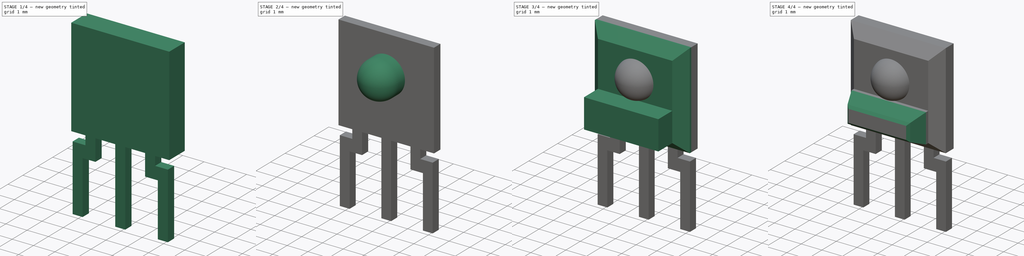
[diagram: build sequence overview — one tinted view per stage of 4, left to right]
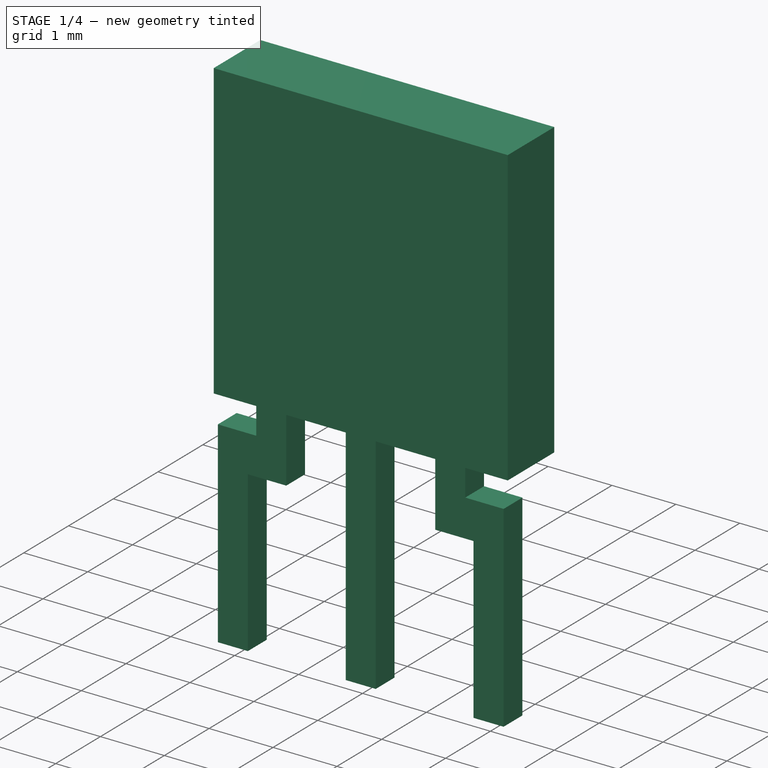
[diagram: stage 1 of 4 — iso view after this stage's code; geometry added in this stage tinted green]
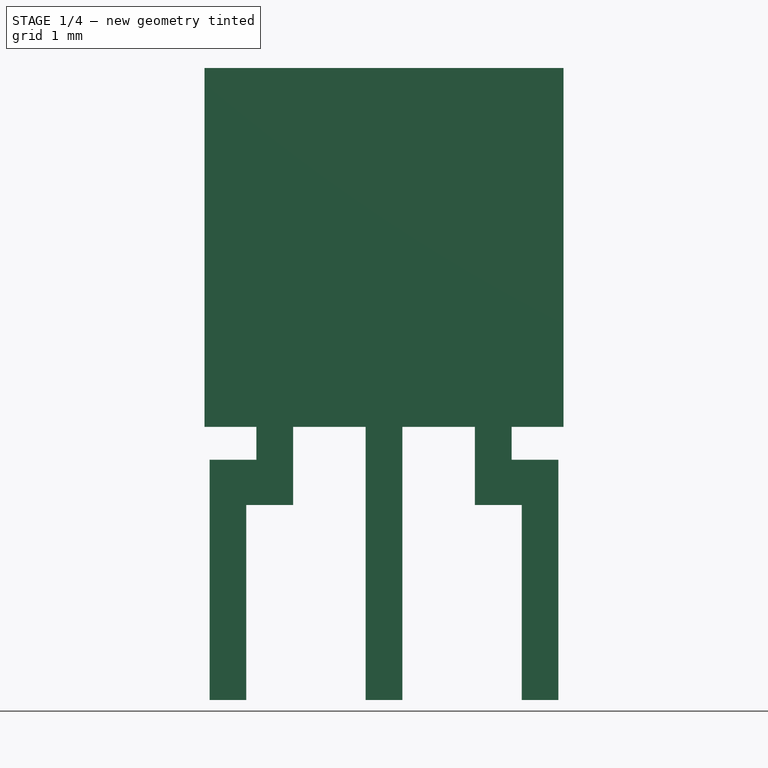
[diagram: stage 1 of 4 — front view after this stage's code; geometry added in this stage tinted green]
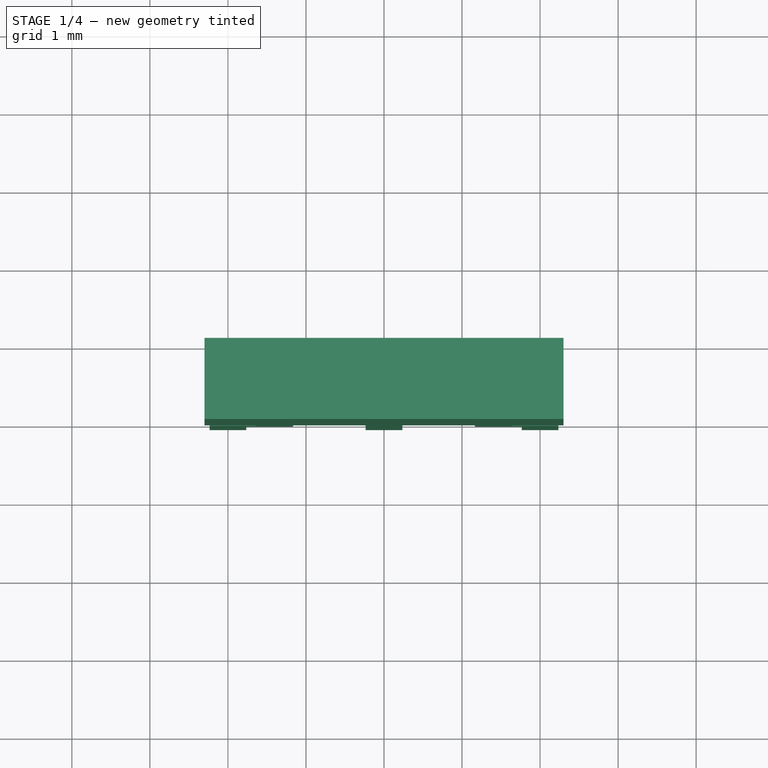
[diagram: stage 1 of 4 — top view after this stage's code; geometry added in this stage tinted green]
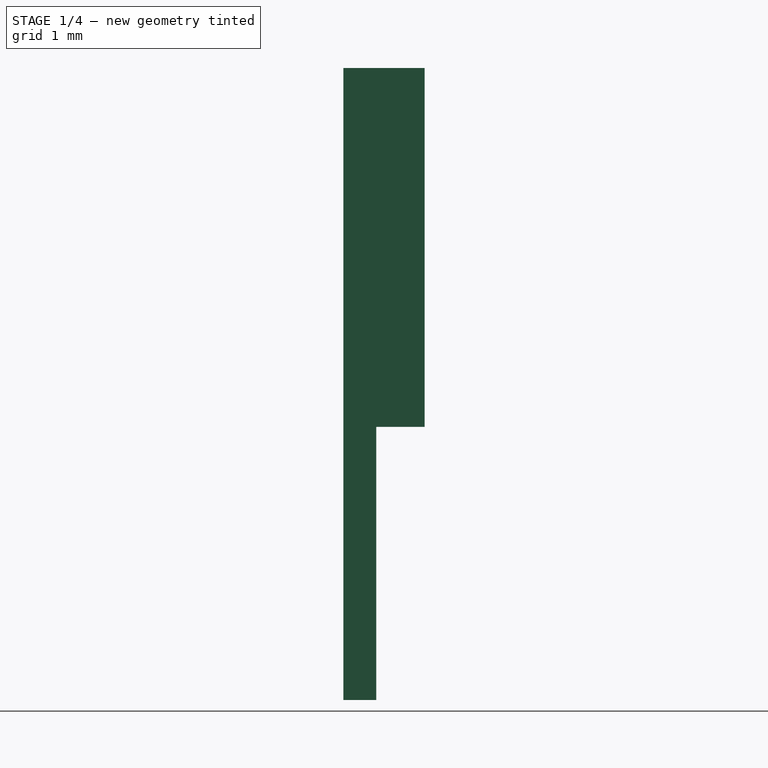
[diagram: stage 1 of 4 — right view after this stage's code; geometry added in this stage tinted green]
FCSTD DOCUMENT  (FreeCAD 0.16RUnknown)
Label: TSL251R
License: All rights reserved
LicenseURL: http://en.wikipedia.org/wiki/All_rights_reserved
objects: Sketcher::SketchObject×6, PartDesign::Pad×5, PartDesign::Chamfer×4, PartDesign::Revolution×1
note: 22 computed .brp shape members not serialized (recipe doc carries the construction recipe); baked Part::Feature solids carry a one-line shape summary decoded from their .brp

FEATURE [Sketcher::SketchObject] Sketch
  Placement = pos=(0,0,0) rot=(-1,0,0;4.71239rad)
  sketch-geometry (4):
    g0: LineSegment StartX=-2.3 StartY=4.6 StartZ=0 EndX=2.3 EndY=4.6 EndZ=0
    g1: LineSegment StartX=2.3 StartY=4.6 StartZ=0 EndX=2.3 EndY=0 EndZ=0
    g2: LineSegment StartX=2.3 StartY=0 StartZ=0 EndX=-2.3 EndY=0 EndZ=0
    g3: LineSegment StartX=-2.3 StartY=0 StartZ=0 EndX=-2.3 EndY=4.6 EndZ=0
  constraints (12):
    c: Coincident(g0,g1)
    c: Coincident(g1,g2)
    c: Coincident(g2,g3)
    c: Coincident(g3,g0)
    c: Horizontal(g0)
    c: Horizontal(g2)
    c: Vertical(g1)
    c: Vertical(g3)
    c: PointOnObject(g1,g-1)
    c: Symmetric(g0,g0,g-2)
    c: DistanceX(g0,g0) = 4.6
    c: DistanceY(g1,g1) = 4.6
FEATURE [PartDesign::Pad] Pad
  Length = 1.04
  Length2 = 100
  Placement = pos=(0,0,0) rot=(-1,0,0;4.71239rad)
  Sketch = -> Sketch
  Type = 0
FEATURE [Sketcher::SketchObject] Sketch001
  Placement = pos=(0,-1.04,0) rot=(1,0,0;1.5708rad)
  Support = -> Pad [Face6]
  sketch-geometry (20):
    g0: LineSegment StartX=-0.235 StartY=0 StartZ=0 EndX=0.235 EndY=0 EndZ=0
    g1: LineSegment StartX=0.235 StartY=0 StartZ=0 EndX=0.235 EndY=-3.5 EndZ=0
    g2: LineSegment StartX=0.235 StartY=-3.5 StartZ=0 EndX=-0.235 EndY=-3.5 EndZ=0
    g3: LineSegment StartX=-0.235 StartY=-3.5 StartZ=0 EndX=-0.235 EndY=0 EndZ=0
    g4: LineSegment StartX=1.635 StartY=0 StartZ=0 EndX=1.635 EndY=-0.42 EndZ=0
    g5: LineSegment StartX=1.635 StartY=-0.42 StartZ=0 EndX=2.235 EndY=-0.42 EndZ=0
    g6: LineSegment StartX=2.235 StartY=-0.42 StartZ=0 EndX=2.235 EndY=-3.5 EndZ=0
    g7: LineSegment StartX=2.235 StartY=-3.5 StartZ=0 EndX=1.765 EndY=-3.5 EndZ=0
    g8: LineSegment StartX=1.765 StartY=-3.5 StartZ=0 EndX=1.765 EndY=-1 EndZ=0
    g9: LineSegment StartX=1.765 StartY=-1 StartZ=0 EndX=1.165 EndY=-1 EndZ=0
    g10: LineSegment StartX=1.165 StartY=-1 StartZ=0 EndX=1.165 EndY=0 EndZ=0
    g11: LineSegment StartX=1.165 StartY=0 StartZ=0 EndX=1.635 EndY=0 EndZ=0
    g12: LineSegment StartX=-1.635 StartY=0 StartZ=0 EndX=-1.635 EndY=-0.42 EndZ=0
    g13: LineSegment StartX=-1.635 StartY=-0.42 StartZ=0 EndX=-2.235 EndY=-0.42 EndZ=0
    g14: LineSegment StartX=-2.235 StartY=-0.42 StartZ=0 EndX=-2.235 EndY=-3.5 EndZ=0
    g15: LineSegment StartX=-2.235 StartY=-3.5 StartZ=0 EndX=-1.765 EndY=-3.5 EndZ=0
    g16: LineSegment StartX=-1.765 StartY=-3.5 StartZ=0 EndX=-1.765 EndY=-1 EndZ=0
    g17: LineSegment StartX=-1.765 StartY=-1 StartZ=0 EndX=-1.165 EndY=-1 EndZ=0
    g18: LineSegment StartX=-1.165 StartY=-1 StartZ=0 EndX=-1.165 EndY=0 EndZ=0
    g19: LineSegment StartX=-1.165 StartY=0 StartZ=0 EndX=-1.635 EndY=0 EndZ=0
  constraints (62):
    c: Coincident(g0,g1)
    c: Coincident(g1,g2)
    c: Coincident(g2,g3)
    c: Coincident(g3,g0)
    c: Horizontal(g0)
    c: Horizontal(g2)
    c: Vertical(g1)
    c: Vertical(g3)
    c: PointOnObject(g0,g-1)
    c: Symmetric(g2,g1,g-2)
    c: DistanceX(g2,g2) = 0.47
    c: DistanceY(g1,g1) = 3.5
    c: PointOnObject(g4,g-1)
    c: Vertical(g4)
    c: Coincident(g4,g5)
    c: Horizontal(g5)
    c: Coincident(g5,g6)
    c: Vertical(g6)
    c: Coincident(g6,g7)
    c: Horizontal(g7)
    c: Coincident(g7,g8)
    c: Vertical(g8)
    c: Coincident(g8,g9)
    c: Horizontal(g9)
    c: Coincident(g9,g10)
    c: Vertical(g10)
    c: Coincident(g10,g11)
    c: Coincident(g11,g4)
    c: Horizontal(g11)
    c: PointOnObject(g12,g-1)
    c: Vertical(g12)
    c: Coincident(g12,g13)
    c: Horizontal(g13)
    c: Coincident(g13,g14)
    c: Vertical(g14)
    c: Coincident(g14,g15)
    c: Horizontal(g15)
    c: Coincident(g15,g16)
    c: Vertical(g16)
    c: Coincident(g16,g17)
    c: Horizontal(g17)
    c: Coincident(g17,g18)
    c: PointOnObject(g18,g-1)
    c: Vertical(g18)
    c: Coincident(g18,g19)
    c: Coincident(g19,g12)
    c: Equal(g15,g2)
    c: Equal(g2,g7)
    c: Equal(g19,g0)
    c: Equal(g0,g11)
    c: DistanceY(g4,g4) = 0.42
    c: Equal(g4,g12)
    c: DistanceY(g10,g10) = 1
    c: Equal(g10,g18)
    c: DistanceX(g15,g2) = 1.53
    c: DistanceX(g1,g7) = 1.53
    c: Equal(g19,g15)
    c: Equal(g11,g7)
    c: DistanceY(g6,g4) = 3.5
    c: DistanceY(g14,g12) = 3.5
    c: Equal(g5,g13)
    c: DistanceX(g5,g5) = 0.6
FEATURE [PartDesign::Pad] Pad001
  Length = 0.42
  Length2 = 100
  Placement = pos=(0,0,0) rot=(-1,0,0;4.71239rad)
  Reversed = true
  Sketch = -> Sketch001
  Type = 0
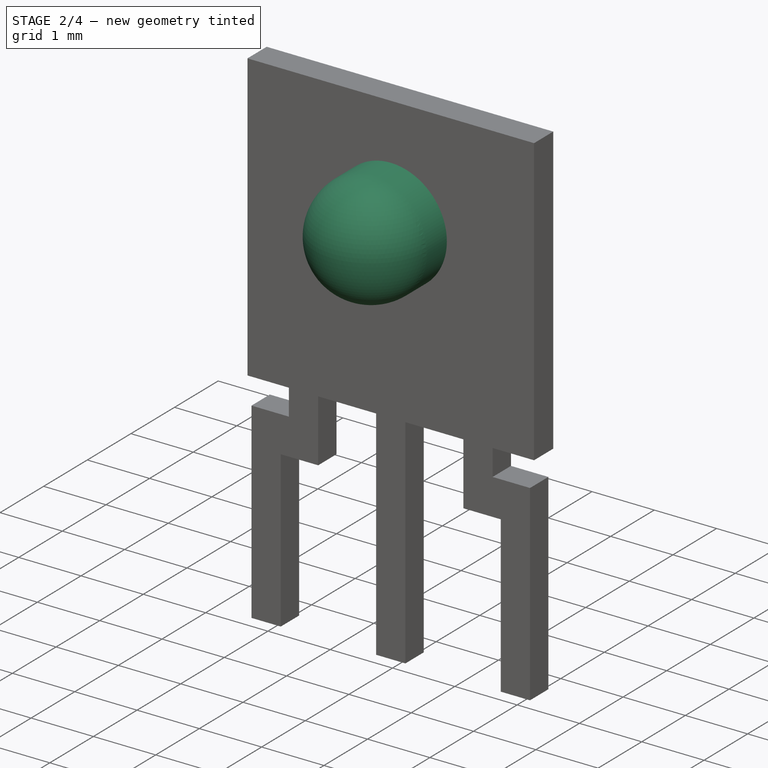
[diagram: stage 2 of 4 — iso view after this stage's code; geometry added in this stage tinted green]
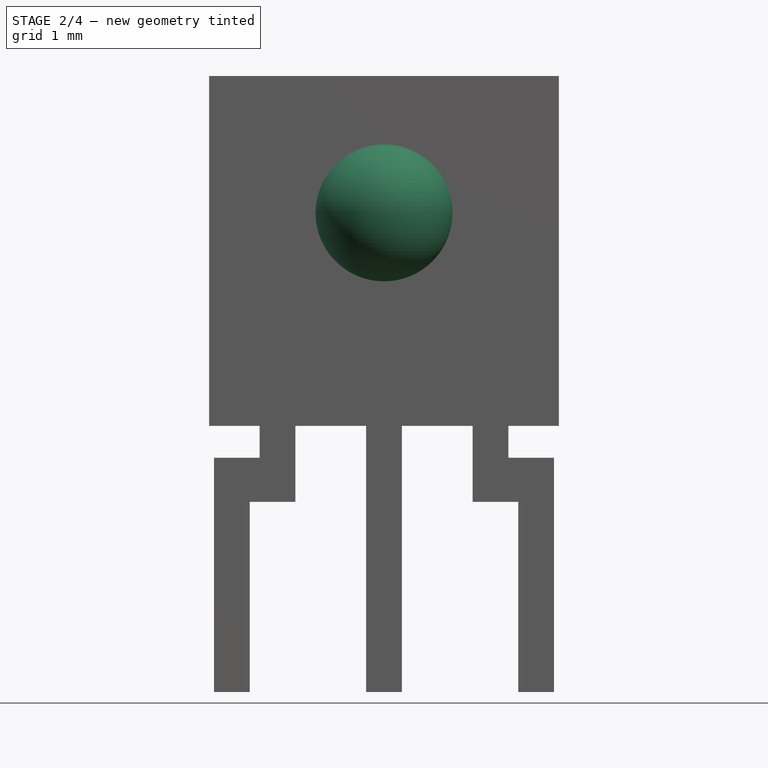
[diagram: stage 2 of 4 — front view after this stage's code; geometry added in this stage tinted green]
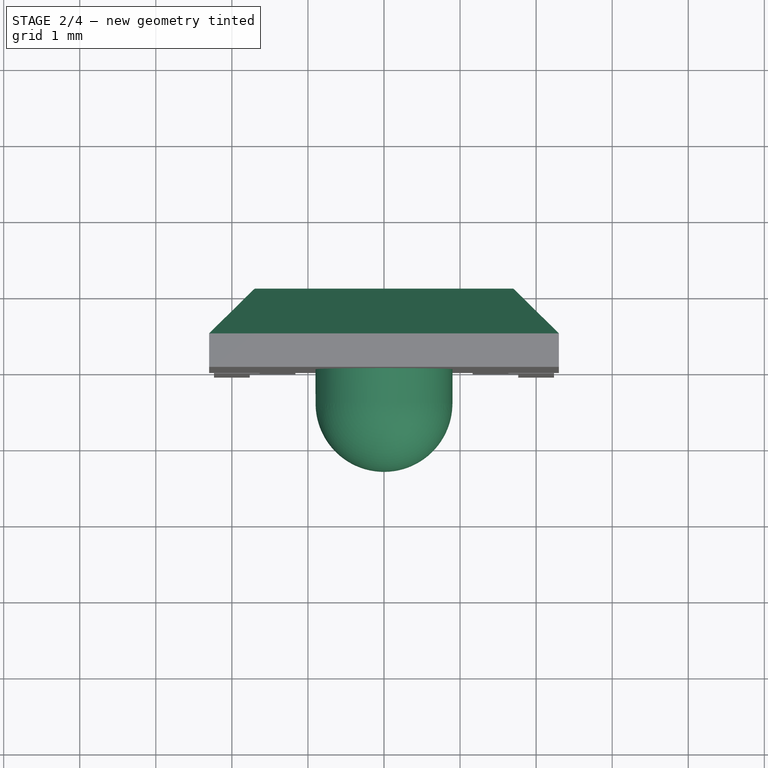
[diagram: stage 2 of 4 — top view after this stage's code; geometry added in this stage tinted green]
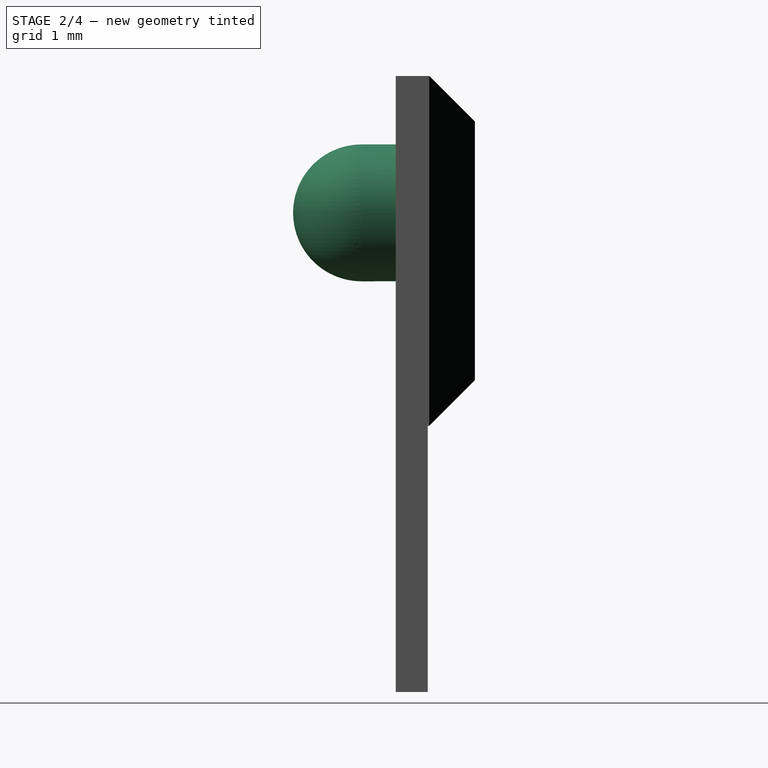
[diagram: stage 2 of 4 — right view after this stage's code; geometry added in this stage tinted green]
FEATURE [PartDesign::Chamfer] Chamfer
  Base = -> Pad001 [Edge3,Edge9,Edge6,Edge11]
  Placement = pos=(0,0,0) rot=(-1,0,0;4.71239rad)
  Size = 0.6
FEATURE [Sketcher::SketchObject] Sketch002
  ExternalGeometry = -> [Chamfer]
  Placement = pos=(0,-1.04,0) rot=(1,0,0;1.5708rad)
  Support = -> Chamfer [Face4]
  sketch-geometry (1):
    g0: Circle CenterX=0 CenterY=2.8 CenterZ=0 NormalX=0 NormalY=0 NormalZ=1 Radius=0.9
  constraints (3):
    c: PointOnObject(g0,g-2)
    c: Radius(g0) = 0.9
    c: DistanceY(g0,g-3) = 1.8
FEATURE [PartDesign::Pad] Pad002
  Length = 0.45
  Length2 = 100
  Placement = pos=(0,0,0) rot=(-1,0,0;4.71239rad)
  Sketch = -> Sketch002
  Type = 0
FEATURE [Sketcher::SketchObject] Sketch003
  ExternalGeometry = -> [Pad002]
  Placement = pos=(0,-1.49,0) rot=(1,0,0;1.5708rad)
  Support = -> Pad002 [Face1]
  sketch-geometry (2):
    g0: ArcOfCircle CenterX=0 CenterY=2.8 CenterZ=0 NormalX=0 NormalY=0 NormalZ=1 Radius=0.9 StartAngle=1.57081 EndAngle=4.71238
    g1: LineSegment StartX=-1.05959e-05 StartY=3.7 StartZ=0 EndX=-1.05959e-05 EndY=1.9 EndZ=0
  constraints (6):
    c: Coincident(g0,g-3)
    c: PointOnObject(g0,g-3)
    c: DistanceY(g0,g0) = 0.9
    c: Vertical(g1)
    c: Coincident(g0,g1)
    c: Coincident(g1,g0)
FEATURE [PartDesign::Revolution] Revolution
  Angle = 180
  Axis = (0,0,1)
  Base = (0,-1.49,0)
  Placement = pos=(0,0,0) rot=(-1,0,0;4.71239rad)
  ReferenceAxis = -> Sketch003 [V_Axis]
  Sketch = -> Sketch003
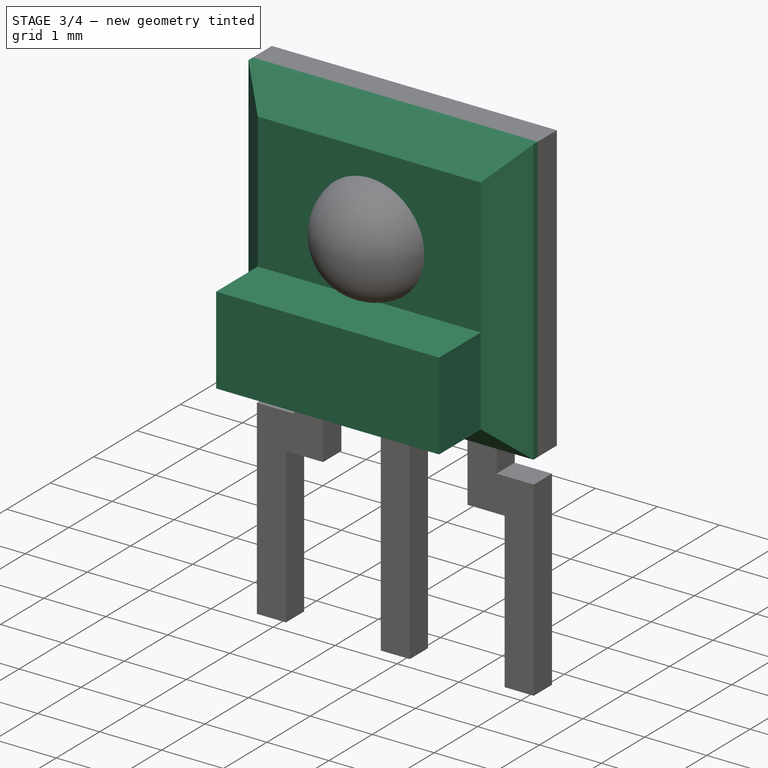
[diagram: stage 3 of 4 — iso view after this stage's code; geometry added in this stage tinted green]
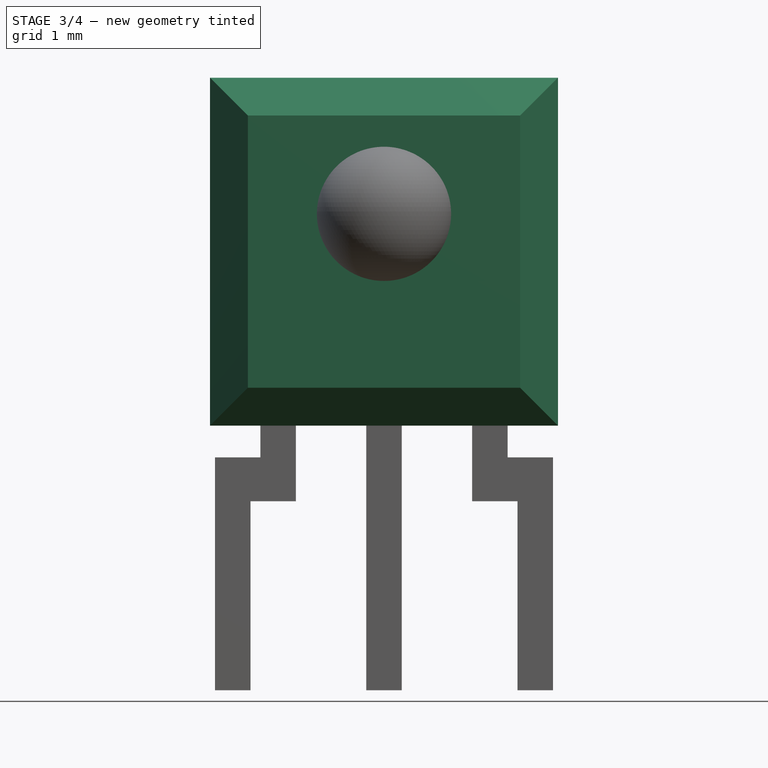
[diagram: stage 3 of 4 — front view after this stage's code; geometry added in this stage tinted green]
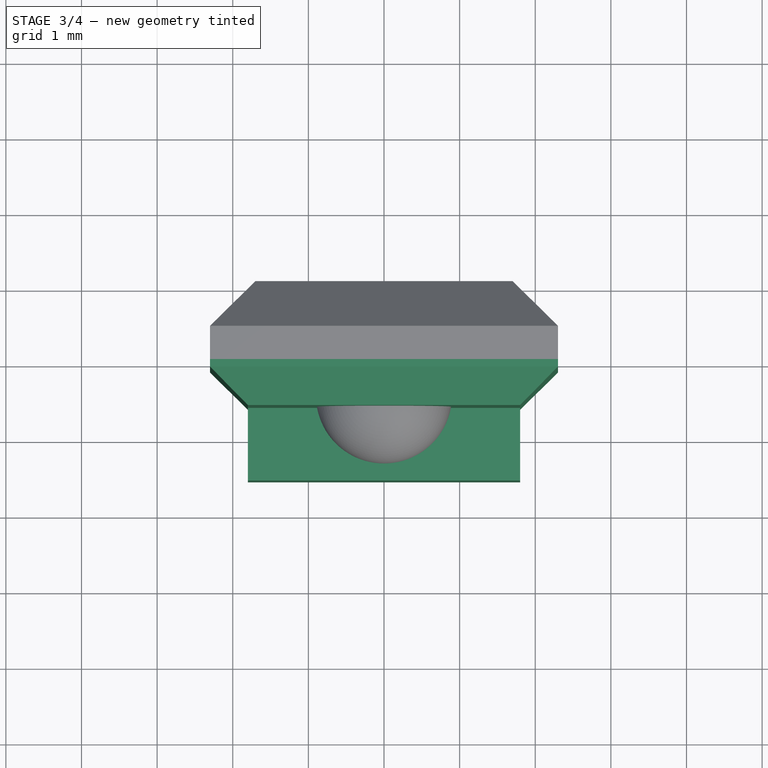
[diagram: stage 3 of 4 — top view after this stage's code; geometry added in this stage tinted green]
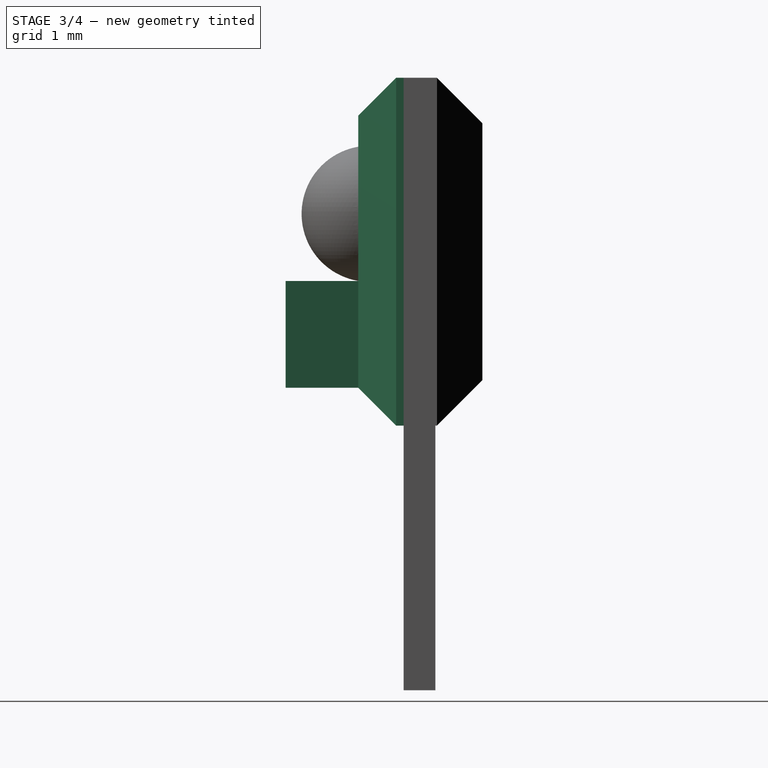
[diagram: stage 3 of 4 — right view after this stage's code; geometry added in this stage tinted green]
FEATURE [Sketcher::SketchObject] Sketch004
  ExternalGeometry = -> [Revolution]
  Placement = pos=(0,-1.04,0) rot=(1,0,0;1.5708rad)
  Support = -> Revolution [Face1]
  sketch-geometry (4):
    g0: LineSegment StartX=-2.3 StartY=4.6 StartZ=0 EndX=2.3 EndY=4.6 EndZ=0
    g1: LineSegment StartX=2.3 StartY=4.6 StartZ=0 EndX=2.3 EndY=0 EndZ=0
    g2: LineSegment StartX=2.3 StartY=0 StartZ=0 EndX=-2.3 EndY=0 EndZ=0
    g3: LineSegment StartX=-2.3 StartY=0 StartZ=0 EndX=-2.3 EndY=4.6 EndZ=0
  constraints (10):
    c: Coincident(g0,g1)
    c: Coincident(g1,g2)
    c: Coincident(g2,g3)
    c: Coincident(g3,g0)
    c: Horizontal(g0)
    c: Horizontal(g2)
    c: Vertical(g1)
    c: Vertical(g3)
    c: Coincident(g0,g-5)
    c: Coincident(g1,g-4)
FEATURE [PartDesign::Pad] Pad003
  Length = 0.6
  Length2 = 100
  Placement = pos=(0,0,0) rot=(-1,0,0;4.71239rad)
  Sketch = -> Sketch004
  Type = 0
FEATURE [PartDesign::Chamfer] Chamfer001
  Base = -> Pad003 [Edge19,Edge38,Edge39,Edge37]
  Placement = pos=(0,0,0) rot=(-1,0,0;4.71239rad)
  Size = 0.5
FEATURE [Sketcher::SketchObject] Sketch005
  ExternalGeometry = -> [Chamfer001]
  Placement = pos=(0,-1.64,0) rot=(1,0,0;1.5708rad)
  Support = -> Chamfer001 [Face9]
  sketch-geometry (4):
    g0: LineSegment StartX=-1.8 StartY=0.5 StartZ=0 EndX=1.8 EndY=0.5 EndZ=0
    g1: LineSegment StartX=1.8 StartY=0.5 StartZ=0 EndX=1.8 EndY=1.91259 EndZ=0
    g2: LineSegment StartX=1.8 StartY=1.91259 StartZ=0 EndX=-1.8 EndY=1.91259 EndZ=0
    g3: LineSegment StartX=-1.8 StartY=1.91259 StartZ=0 EndX=-1.8 EndY=0.5 EndZ=0
  constraints (11):
    c: Coincident(g0,g1)
    c: Coincident(g1,g2)
    c: Coincident(g2,g3)
    c: Coincident(g3,g0)
    c: Horizontal(g0)
    c: Horizontal(g2)
    c: Vertical(g1)
    c: Vertical(g3)
    c: Coincident(g0,g-4)
    c: PointOnObject(g1,g-5)
    c: Tangent(g2,g-6)
FEATURE [PartDesign::Pad] Pad004
  Length = 0.96
  Length2 = 100
  Placement = pos=(0,0,0) rot=(-1,0,0;4.71239rad)
  Sketch = -> Sketch005
  Type = 0
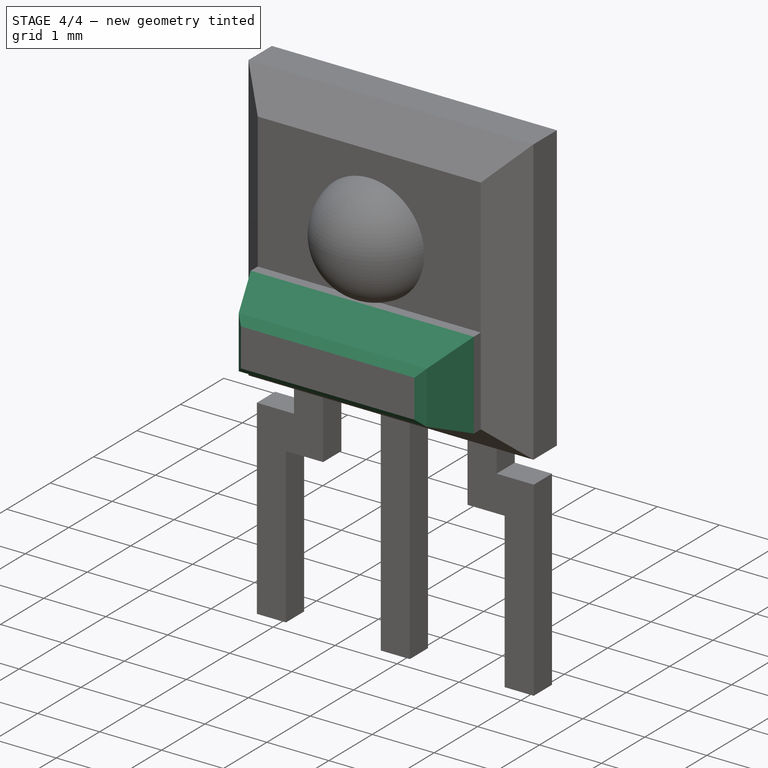
[diagram: stage 4 of 4 — iso view after this stage's code; geometry added in this stage tinted green]
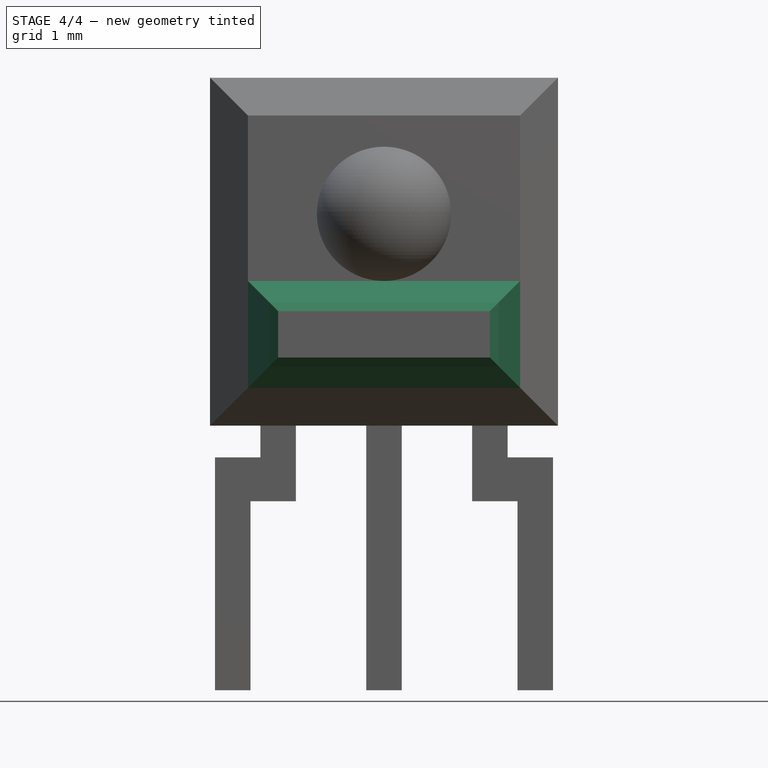
[diagram: stage 4 of 4 — front view after this stage's code; geometry added in this stage tinted green]
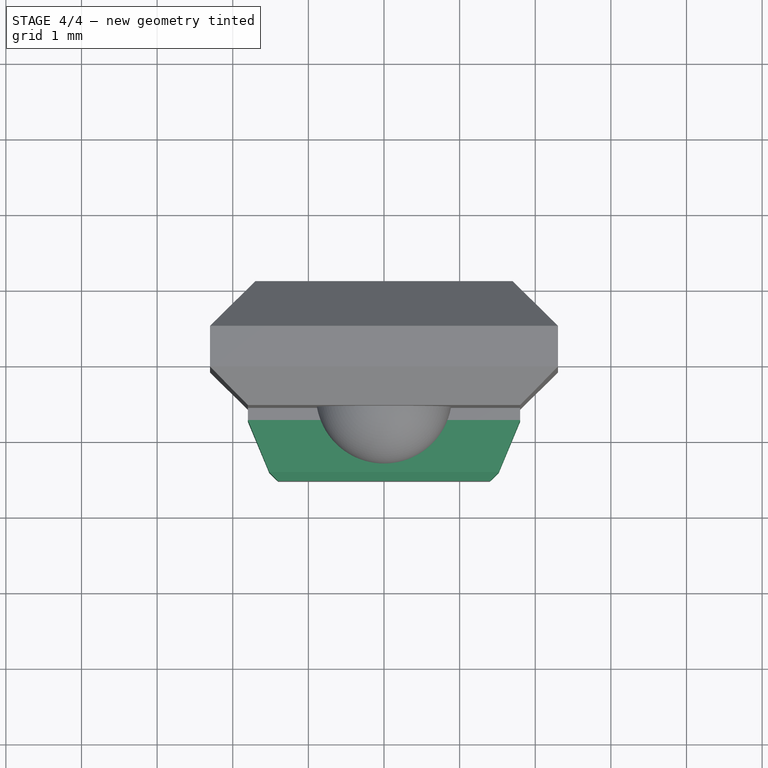
[diagram: stage 4 of 4 — top view after this stage's code; geometry added in this stage tinted green]
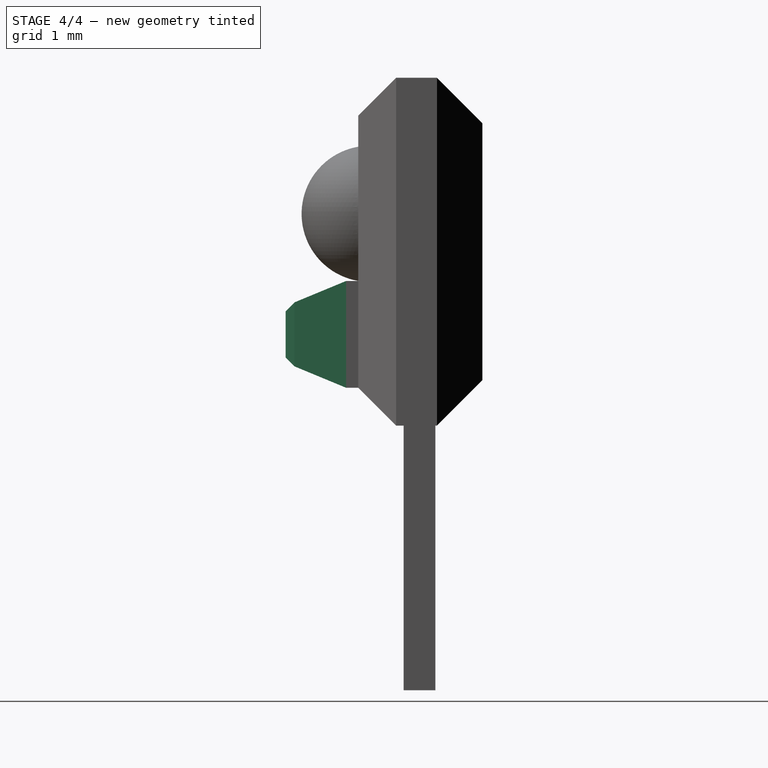
[diagram: stage 4 of 4 — right view after this stage's code; geometry added in this stage tinted green]
FEATURE [PartDesign::Chamfer] Chamfer002
  Base = -> Pad004 [Edge3,Edge1,Edge4,Edge2]
  Placement = pos=(0,0,0) rot=(-1,0,0;4.71239rad)
  Size = 0.4
FEATURE [PartDesign::Chamfer] Chamfer003
  Base = -> Chamfer002 [Edge6,Edge9,Edge12,Edge10]
  Placement = pos=(0,0,0) rot=(-1,0,0;4.71239rad)
  Size = 0.4
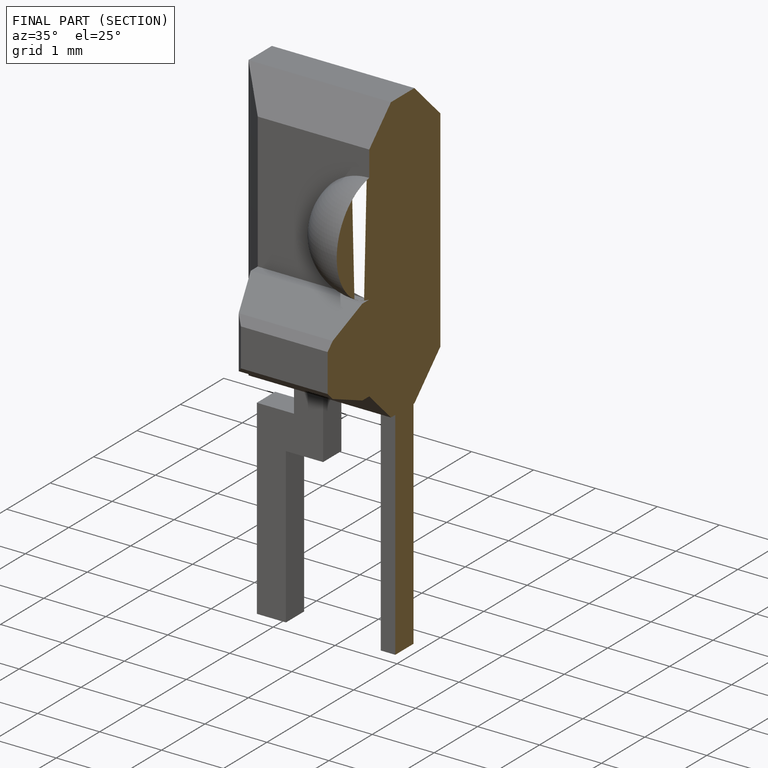
[diagram: finished part — half-section view (interior)]
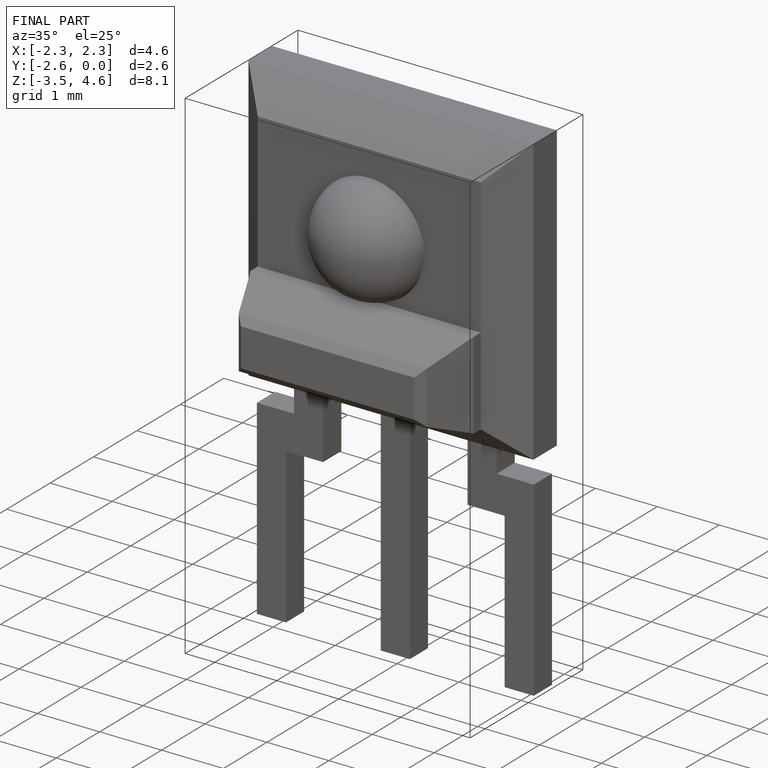
[diagram: finished part — iso view with bounding-box wireframe]
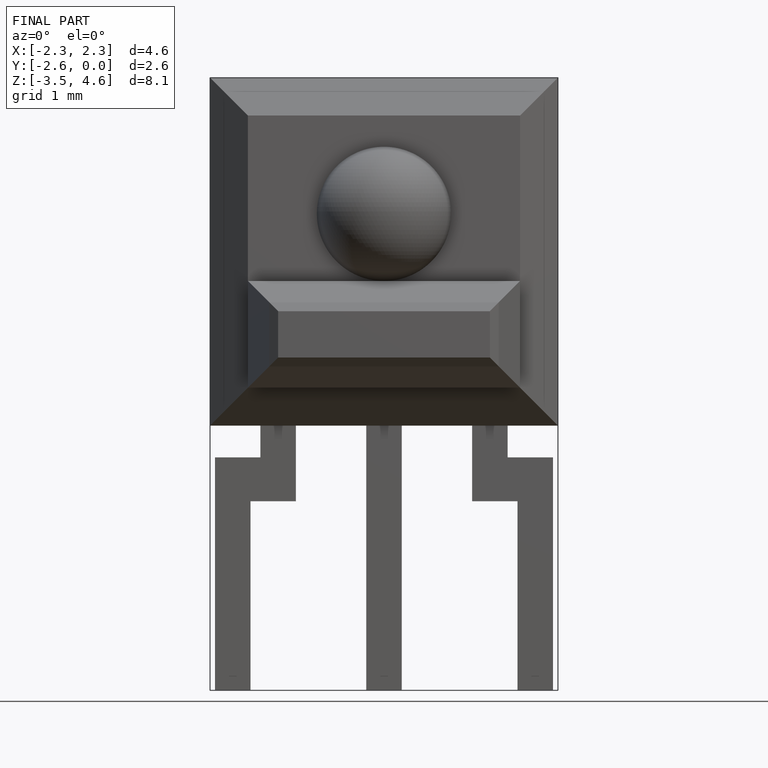
[diagram: finished part — front view with bounding-box wireframe]
